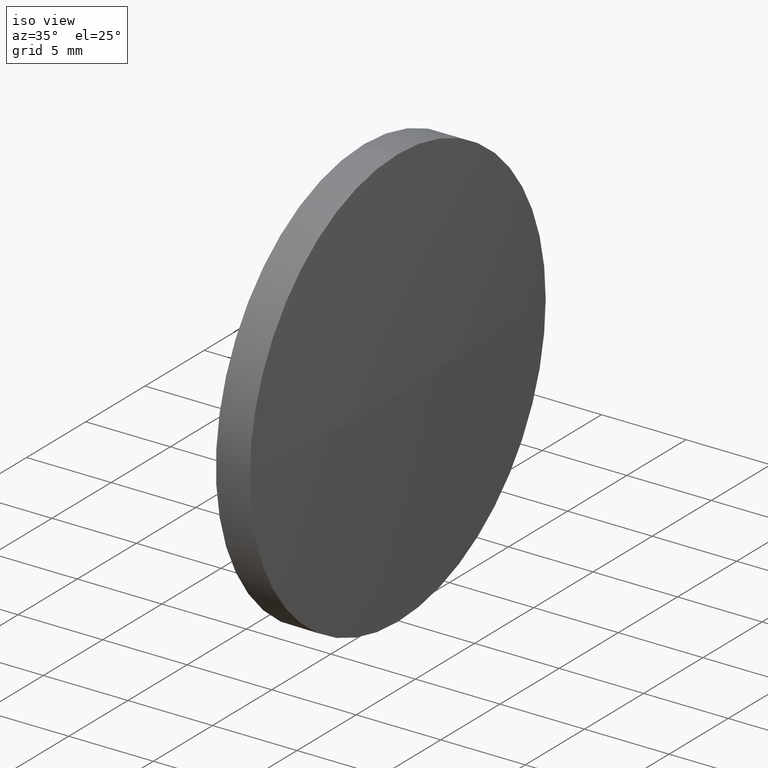
[diagram: clean part render]
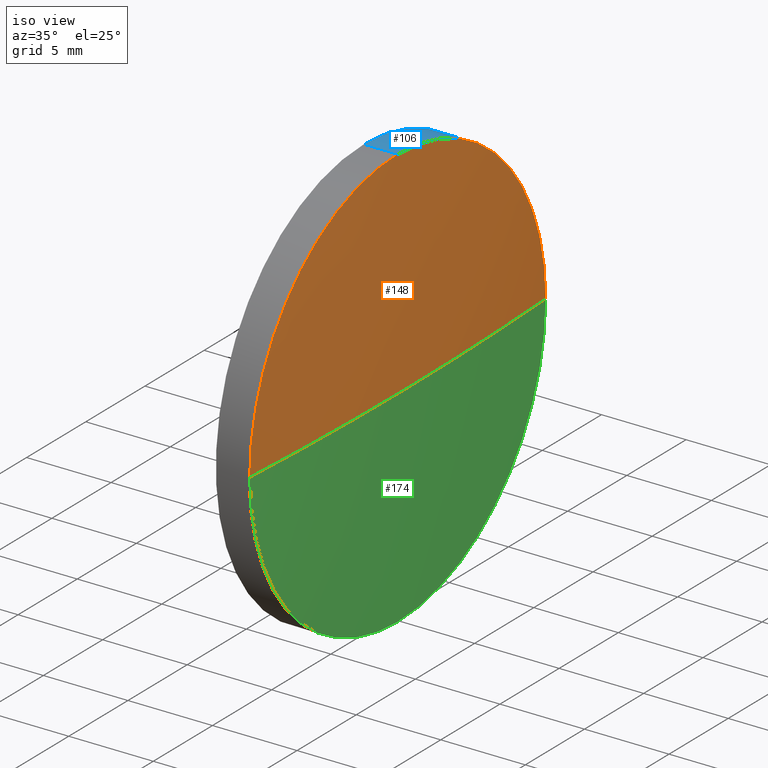
[diagram: same view with three faces highlighted in distinct colors, each labeled with its STEP entity id]
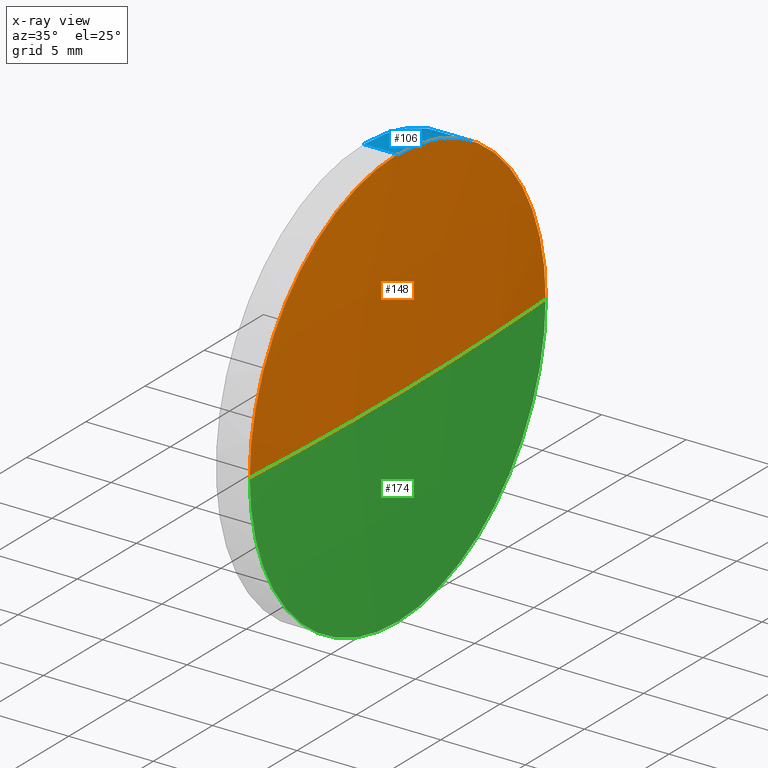
[diagram: x-ray of the same camera — body ghosted, the three highlighted faces saturated]
A machine part, iso view with three faces highlighted in distinct colors.
The next image is the same camera in x-ray (body ghosted, the three faces saturated) — at least one of them is partly hidden behind the body in this view.
Their STEP definitions:

[orange] entity #148 — the highlighted spherical surface has radius 205.782 mm.
#10 = DIRECTION ( 'NONE',  ( -1.000000000000000000, -0.0000000000000000000, -0.0000000000000000000 ) ) ;
#20 = DIRECTION ( 'NONE',  ( 1.000000000000000000, 0.0000000000000000000, 0.0000000000000000000 ) ) ;
#22 = DIRECTION ( 'NONE',  ( 0.0000000000000000000, 0.0000000000000000000, 1.000000000000000000 ) ) ;
#23 = CARTESIAN_POINT ( 'NONE',  ( 490.7917818658079900, 53.94199021685555800, 0.0000000000000000000 ) ) ;
#26 = CARTESIAN_POINT ( 'NONE',  ( 696.1938871289664800, 41.44199021685576400, -1.530808498934165500E-015 ) ) ;
#27 = AXIS2_PLACEMENT_3D ( 'NONE', #93, #10, #135 ) ;
#30 = CIRCLE ( 'NONE', #145, 205.7821052631583700 ) ;
#35 = ORIENTED_EDGE ( 'NONE', *, *, #123, .F. ) ;
#36 = CARTESIAN_POINT ( 'NONE',  ( 696.1938871289664800, 66.44199021685565800, 0.0000000000000000000 ) ) ;
#37 = EDGE_CURVE ( 'NONE', #156, #103, #118, .T. ) ;
#40 = CIRCLE ( 'NONE', #27, 12.50000000000000400 ) ;
#41 = AXIS2_PLACEMENT_3D ( 'NONE', #127, #165, #53 ) ;
#45 = CARTESIAN_POINT ( 'NONE',  ( 696.1938871289664800, 53.94199021685585600, 0.0000000000000000000 ) ) ;
#53 = DIRECTION ( 'NONE',  ( 0.0000000000000000000, 1.000000000000000000, 0.0000000000000000000 ) ) ;
#55 = EDGE_CURVE ( 'NONE', #107, #156, #40, .T. ) ;
#59 = CARTESIAN_POINT ( 'NONE',  ( 490.7917818658079900, 53.94199021685555800, 0.0000000000000000000 ) ) ;
#60 = AXIS2_PLACEMENT_3D ( 'NONE', #45, #149, #22 ) ;
#64 = DIRECTION ( 'NONE',  ( -0.0000000000000000000, 0.0000000000000000000, 1.000000000000000000 ) ) ;
#67 = ORIENTED_EDGE ( 'NONE', *, *, #37, .F. ) ;
#71 = ORIENTED_EDGE ( 'NONE', *, *, #55, .F. ) ;
#80 = EDGE_LOOP ( 'NONE', ( #35, #132, #67, #71 ) ) ;
#93 = CARTESIAN_POINT ( 'NONE',  ( 696.1938871289664800, 53.94199021685585600, 0.0000000000000000000 ) ) ;
#97 = VERTEX_POINT ( 'NONE', #164 ) ;
#103 = VERTEX_POINT ( 'NONE', #36 ) ;
#104 = EDGE_CURVE ( 'NONE', #97, #103, #30, .T. ) ;
#107 = VERTEX_POINT ( 'NONE', #26 ) ;
#110 = DIRECTION ( 'NONE',  ( 0.0000000000000000000, 1.224646799147353200E-016, -1.000000000000000000 ) ) ;
#118 = CIRCLE ( 'NONE', #60, 12.50000000000000400 ) ;
#123 = EDGE_CURVE ( 'NONE', #97, #107, #167, .T. ) ;
#127 = CARTESIAN_POINT ( 'NONE',  ( 490.7917818658079900, 53.94199021685555800, 0.0000000000000000000 ) ) ;
#131 = AXIS2_PLACEMENT_3D ( 'NONE', #59, #110, #161 ) ;
#132 = ORIENTED_EDGE ( 'NONE', *, *, #104, .T. ) ;
#135 = DIRECTION ( 'NONE',  ( 0.0000000000000000000, 0.0000000000000000000, 1.000000000000000000 ) ) ;
#145 = AXIS2_PLACEMENT_3D ( 'NONE', #23, #64, #20 ) ;
#148 = ADVANCED_FACE ( 'NONE', ( #178 ), #155, .T. ) ;
#149 = DIRECTION ( 'NONE',  ( -1.000000000000000000, -0.0000000000000000000, -0.0000000000000000000 ) ) ;
#155 = SPHERICAL_SURFACE ( 'NONE', #41, 205.7821052631584300 ) ;
#156 = VERTEX_POINT ( 'NONE', #175 ) ;
#161 = DIRECTION ( 'NONE',  ( 0.0000000000000000000, 1.000000000000000000, 1.224646799147353500E-016 ) ) ;
#164 = CARTESIAN_POINT ( 'NONE',  ( 696.5738871289663600, 53.94199021685557200, 0.0000000000000000000 ) ) ;
#165 = DIRECTION ( 'NONE',  ( -0.0000000000000000000, 0.0000000000000000000, -1.000000000000000000 ) ) ;
#167 = CIRCLE ( 'NONE', #131, 205.7821052631584000 ) ;
#175 = CARTESIAN_POINT ( 'NONE',  ( 696.1938871289664800, 53.94199021685585600, 12.50000000000000400 ) ) ;
#178 = FACE_OUTER_BOUND ( 'NONE', #80, .T. ) ;

[blue] entity #106 — the highlighted cylindrical surface (partial cylindrical patch) has radius 12.5 mm, axis along (-1, -0, -0).
#6 = CIRCLE ( 'NONE', #85, 12.50000000000000400 ) ;
#7 = CARTESIAN_POINT ( 'NONE',  ( 694.1938871289664800, 53.94199021685585600, -12.50000000000000400 ) ) ;
#9 = DIRECTION ( 'NONE',  ( 0.0000000000000000000, 0.0000000000000000000, 1.000000000000000000 ) ) ;
#15 = EDGE_CURVE ( 'NONE', #156, #111, #44, .T. ) ;
#16 = EDGE_CURVE ( 'NONE', #100, #63, #82, .T. ) ;
#17 = CARTESIAN_POINT ( 'NONE',  ( 692.1647795505293700, 53.94199021685585600, 12.50000000000000400 ) ) ;
#22 = DIRECTION ( 'NONE',  ( 0.0000000000000000000, 0.0000000000000000000, 1.000000000000000000 ) ) ;
#29 = AXIS2_PLACEMENT_3D ( 'NONE', #87, #61, #152 ) ;
#33 = CARTESIAN_POINT ( 'NONE',  ( 696.1938871289664800, 53.94199021685585600, 0.0000000000000000000 ) ) ;
#34 = DIRECTION ( 'NONE',  ( -1.000000000000000000, -0.0000000000000000000, -0.0000000000000000000 ) ) ;
#36 = CARTESIAN_POINT ( 'NONE',  ( 696.1938871289664800, 66.44199021685565800, 0.0000000000000000000 ) ) ;
#37 = EDGE_CURVE ( 'NONE', #156, #103, #118, .T. ) ;
#39 = CIRCLE ( 'NONE', #91, 12.50000000000000400 ) ;
#44 = LINE ( 'NONE', #17, #124 ) ;
#45 = CARTESIAN_POINT ( 'NONE',  ( 696.1938871289664800, 53.94199021685585600, 0.0000000000000000000 ) ) ;
#48 = DIRECTION ( 'NONE',  ( 0.0000000000000000000, 0.0000000000000000000, 1.000000000000000000 ) ) ;
#57 = ORIENTED_EDGE ( 'NONE', *, *, #16, .T. ) ;
#60 = AXIS2_PLACEMENT_3D ( 'NONE', #45, #149, #22 ) ;
#61 = DIRECTION ( 'NONE',  ( -1.000000000000000000, -0.0000000000000000000, -0.0000000000000000000 ) ) ;
#63 = VERTEX_POINT ( 'NONE', #7 ) ;
#69 = EDGE_LOOP ( 'NONE', ( #183, #57, #130, #158, #179 ) ) ;
#76 = EDGE_CURVE ( 'NONE', #111, #63, #6, .T. ) ;
#77 = CARTESIAN_POINT ( 'NONE',  ( 694.1938871289664800, 53.94199021685585600, 0.0000000000000000000 ) ) ;
#82 = LINE ( 'NONE', #109, #154 ) ;
#85 = AXIS2_PLACEMENT_3D ( 'NONE', #77, #34, #48 ) ;
#87 = CARTESIAN_POINT ( 'NONE',  ( 692.1647795505293700, 53.94199021685585600, 0.0000000000000000000 ) ) ;
#89 = CYLINDRICAL_SURFACE ( 'NONE', #29, 12.50000000000000400 ) ;
#91 = AXIS2_PLACEMENT_3D ( 'NONE', #33, #180, #9 ) ;
#100 = VERTEX_POINT ( 'NONE', #126 ) ;
#103 = VERTEX_POINT ( 'NONE', #36 ) ;
#106 = ADVANCED_FACE ( 'NONE', ( #122 ), #89, .T. ) ;
#109 = CARTESIAN_POINT ( 'NONE',  ( 692.1647795505293700, 53.94199021685585600, -12.50000000000000400 ) ) ;
#111 = VERTEX_POINT ( 'NONE', #125 ) ;
#116 = EDGE_CURVE ( 'NONE', #103, #100, #39, .T. ) ;
#118 = CIRCLE ( 'NONE', #60, 12.50000000000000400 ) ;
#120 = DIRECTION ( 'NONE',  ( -1.000000000000000000, -0.0000000000000000000, -0.0000000000000000000 ) ) ;
#122 = FACE_OUTER_BOUND ( 'NONE', #69, .T. ) ;
#124 = VECTOR ( 'NONE', #120, 1000.000000000000000 ) ;
#125 = CARTESIAN_POINT ( 'NONE',  ( 694.1938871289664800, 53.94199021685585600, 12.50000000000000400 ) ) ;
#126 = CARTESIAN_POINT ( 'NONE',  ( 696.1938871289664800, 53.94199021685585600, -12.50000000000000400 ) ) ;
#130 = ORIENTED_EDGE ( 'NONE', *, *, #76, .F. ) ;
#149 = DIRECTION ( 'NONE',  ( -1.000000000000000000, -0.0000000000000000000, -0.0000000000000000000 ) ) ;
#152 = DIRECTION ( 'NONE',  ( 0.0000000000000000000, 0.0000000000000000000, 1.000000000000000000 ) ) ;
#154 = VECTOR ( 'NONE', #163, 1000.000000000000000 ) ;
#156 = VERTEX_POINT ( 'NONE', #175 ) ;
#158 = ORIENTED_EDGE ( 'NONE', *, *, #15, .F. ) ;
#163 = DIRECTION ( 'NONE',  ( -1.000000000000000000, -0.0000000000000000000, -0.0000000000000000000 ) ) ;
#175 = CARTESIAN_POINT ( 'NONE',  ( 696.1938871289664800, 53.94199021685585600, 12.50000000000000400 ) ) ;
#179 = ORIENTED_EDGE ( 'NONE', *, *, #37, .T. ) ;
#180 = DIRECTION ( 'NONE',  ( -1.000000000000000000, -0.0000000000000000000, -0.0000000000000000000 ) ) ;
#183 = ORIENTED_EDGE ( 'NONE', *, *, #116, .T. ) ;

[green] entity #174 — the highlighted spherical surface has radius 205.782 mm.
#9 = DIRECTION ( 'NONE',  ( 0.0000000000000000000, 0.0000000000000000000, 1.000000000000000000 ) ) ;
#12 = EDGE_CURVE ( 'NONE', #100, #107, #86, .T. ) ;
#14 = ORIENTED_EDGE ( 'NONE', *, *, #123, .T. ) ;
#20 = DIRECTION ( 'NONE',  ( 1.000000000000000000, 0.0000000000000000000, 0.0000000000000000000 ) ) ;
#23 = CARTESIAN_POINT ( 'NONE',  ( 490.7917818658079900, 53.94199021685555800, 0.0000000000000000000 ) ) ;
#26 = CARTESIAN_POINT ( 'NONE',  ( 696.1938871289664800, 41.44199021685576400, -1.530808498934165500E-015 ) ) ;
#30 = CIRCLE ( 'NONE', #145, 205.7821052631583700 ) ;
#33 = CARTESIAN_POINT ( 'NONE',  ( 696.1938871289664800, 53.94199021685585600, 0.0000000000000000000 ) ) ;
#36 = CARTESIAN_POINT ( 'NONE',  ( 696.1938871289664800, 66.44199021685565800, 0.0000000000000000000 ) ) ;
#39 = CIRCLE ( 'NONE', #91, 12.50000000000000400 ) ;
#47 = DIRECTION ( 'NONE',  ( -0.0000000000000000000, 0.0000000000000000000, -1.000000000000000000 ) ) ;
#50 = AXIS2_PLACEMENT_3D ( 'NONE', #182, #47, #166 ) ;
#54 = SPHERICAL_SURFACE ( 'NONE', #50, 205.7821052631584300 ) ;
#59 = CARTESIAN_POINT ( 'NONE',  ( 490.7917818658079900, 53.94199021685555800, 0.0000000000000000000 ) ) ;
#64 = DIRECTION ( 'NONE',  ( -0.0000000000000000000, 0.0000000000000000000, 1.000000000000000000 ) ) ;
#65 = ORIENTED_EDGE ( 'NONE', *, *, #12, .F. ) ;
#73 = ORIENTED_EDGE ( 'NONE', *, *, #104, .F. ) ;
#86 = CIRCLE ( 'NONE', #133, 12.50000000000000400 ) ;
#88 = CARTESIAN_POINT ( 'NONE',  ( 696.1938871289664800, 53.94199021685585600, 0.0000000000000000000 ) ) ;
#91 = AXIS2_PLACEMENT_3D ( 'NONE', #33, #180, #9 ) ;
#97 = VERTEX_POINT ( 'NONE', #164 ) ;
#100 = VERTEX_POINT ( 'NONE', #126 ) ;
#103 = VERTEX_POINT ( 'NONE', #36 ) ;
#104 = EDGE_CURVE ( 'NONE', #97, #103, #30, .T. ) ;
#107 = VERTEX_POINT ( 'NONE', #26 ) ;
#110 = DIRECTION ( 'NONE',  ( 0.0000000000000000000, 1.224646799147353200E-016, -1.000000000000000000 ) ) ;
#116 = EDGE_CURVE ( 'NONE', #103, #100, #39, .T. ) ;
#123 = EDGE_CURVE ( 'NONE', #97, #107, #167, .T. ) ;
#126 = CARTESIAN_POINT ( 'NONE',  ( 696.1938871289664800, 53.94199021685585600, -12.50000000000000400 ) ) ;
#131 = AXIS2_PLACEMENT_3D ( 'NONE', #59, #110, #161 ) ;
#133 = AXIS2_PLACEMENT_3D ( 'NONE', #88, #146, #147 ) ;
#138 = EDGE_LOOP ( 'NONE', ( #73, #14, #65, #144 ) ) ;
#144 = ORIENTED_EDGE ( 'NONE', *, *, #116, .F. ) ;
#145 = AXIS2_PLACEMENT_3D ( 'NONE', #23, #64, #20 ) ;
#146 = DIRECTION ( 'NONE',  ( -1.000000000000000000, -0.0000000000000000000, -0.0000000000000000000 ) ) ;
#147 = DIRECTION ( 'NONE',  ( 0.0000000000000000000, 0.0000000000000000000, 1.000000000000000000 ) ) ;
#161 = DIRECTION ( 'NONE',  ( 0.0000000000000000000, 1.000000000000000000, 1.224646799147353500E-016 ) ) ;
#162 = FACE_OUTER_BOUND ( 'NONE', #138, .T. ) ;
#164 = CARTESIAN_POINT ( 'NONE',  ( 696.5738871289663600, 53.94199021685557200, 0.0000000000000000000 ) ) ;
#166 = DIRECTION ( 'NONE',  ( 0.0000000000000000000, 1.000000000000000000, 0.0000000000000000000 ) ) ;
#167 = CIRCLE ( 'NONE', #131, 205.7821052631584000 ) ;
#174 = ADVANCED_FACE ( 'NONE', ( #162 ), #54, .T. ) ;
#180 = DIRECTION ( 'NONE',  ( -1.000000000000000000, -0.0000000000000000000, -0.0000000000000000000 ) ) ;
#182 = CARTESIAN_POINT ( 'NONE',  ( 490.7917818658079900, 53.94199021685555800, 0.0000000000000000000 ) ) ;